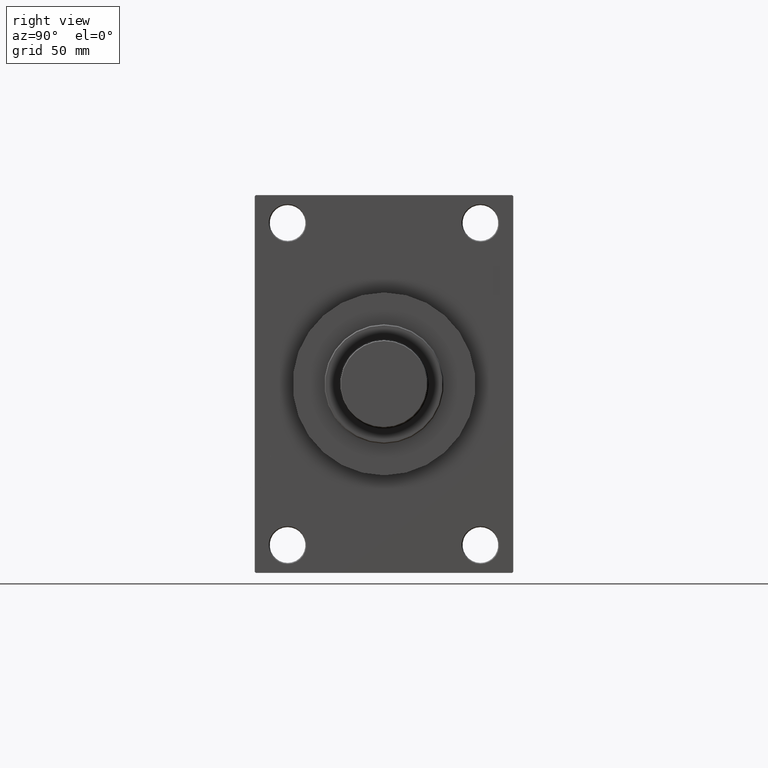
[diagram: clean part render]
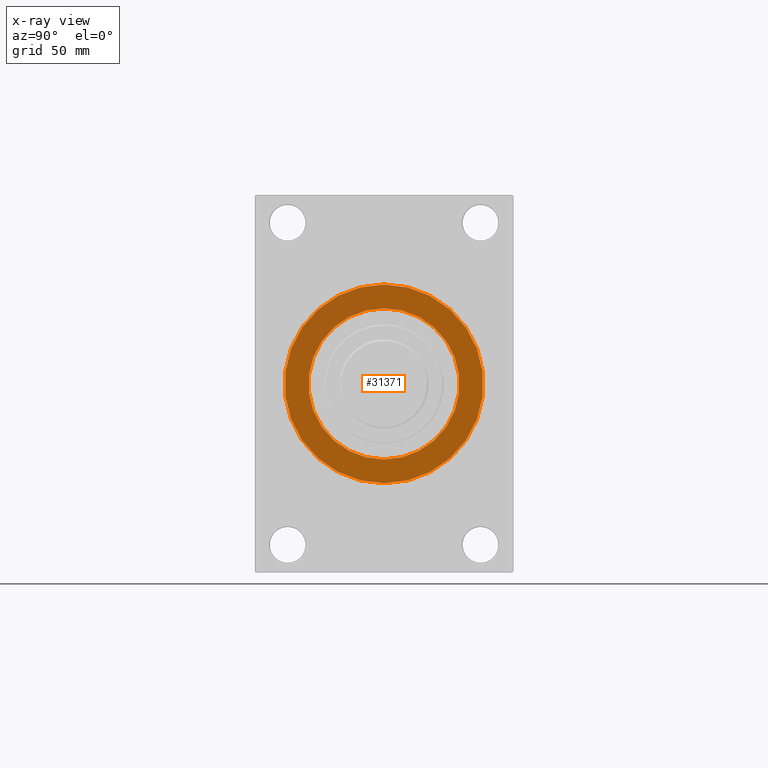
[diagram: x-ray — body ghosted, one internal face saturated and labeled with its STEP entity id]
A machine part, right view, then the same camera in x-ray: the body is ghosted and one INTERNAL B-rep face — a face not visible from any outside direction — is saturated and labeled: STEP entity #31371.
In plain terms, the highlighted planar face has unit normal (-1, 0, 0).
Its self-contained STEP definition (entity closure, byte-faithful):
#94 = CARTESIAN_POINT ( 'NONE',  ( 115.9999999999999858, 3.521148781771555838E-15, -50.00000000000000000 ) ) ;
#414 = EDGE_LOOP ( 'NONE', ( #46497, #8575 ) ) ;
#750 = AXIS2_PLACEMENT_3D ( 'NONE', #7454, #44893, #15947 ) ;
#2576 = CIRCLE ( 'NONE', #5693, 50.00000000000000000 ) ;
#5693 = AXIS2_PLACEMENT_3D ( 'NONE', #18767, #11231, #33599 ) ;
#6018 = DIRECTION ( 'NONE',  ( 0.000000000000000000, 0.000000000000000000, 1.000000000000000000 ) ) ;
#6866 = VERTEX_POINT ( 'NONE', #24240 ) ;
#7324 = ORIENTED_EDGE ( 'NONE', *, *, #43198, .F. ) ;
#7454 = CARTESIAN_POINT ( 'NONE',  ( 115.9999999999999858, -2.602085213965210642E-15, 0.000000000000000000 ) ) ;
#8394 = ORIENTED_EDGE ( 'NONE', *, *, #37595, .F. ) ;
#8575 = ORIENTED_EDGE ( 'NONE', *, *, #35384, .F. ) ;
#8644 = CARTESIAN_POINT ( 'NONE',  ( 115.9999999999999858, 0.000000000000000000, 0.000000000000000000 ) ) ;
#10936 = CIRCLE ( 'NONE', #11704, 38.00000000000000000 ) ;
#11231 = DIRECTION ( 'NONE',  ( 1.000000000000000000, 0.000000000000000000, 0.000000000000000000 ) ) ;
#11704 = AXIS2_PLACEMENT_3D ( 'NONE', #24504, #39334, #6018 ) ;
#12676 = AXIS2_PLACEMENT_3D ( 'NONE', #28139, #20842, #35688 ) ;
#12753 = FACE_OUTER_BOUND ( 'NONE', #414, .T. ) ;
#12992 = PLANE ( 'NONE',  #20949 ) ;
#15947 = DIRECTION ( 'NONE',  ( 0.000000000000000000, 0.000000000000000000, -1.000000000000000000 ) ) ;
#18767 = CARTESIAN_POINT ( 'NONE',  ( 115.9999999999999858, -2.602085213965210642E-15, 0.000000000000000000 ) ) ;
#20446 = CIRCLE ( 'NONE', #12676, 38.00000000000000000 ) ;
#20842 = DIRECTION ( 'NONE',  ( -1.000000000000000000, 0.000000000000000000, -0.000000000000000000 ) ) ;
#20949 = AXIS2_PLACEMENT_3D ( 'NONE', #8644, #38307, #45362 ) ;
#22477 = CIRCLE ( 'NONE', #750, 50.00000000000000000 ) ;
#24183 = FACE_BOUND ( 'NONE', #31533, .T. ) ;
#24240 = CARTESIAN_POINT ( 'NONE',  ( 115.9999999999999858, 0.000000000000000000, -38.00000000000000000 ) ) ;
#24504 = CARTESIAN_POINT ( 'NONE',  ( 115.9999999999999858, 0.000000000000000000, 0.000000000000000000 ) ) ;
#28139 = CARTESIAN_POINT ( 'NONE',  ( 115.9999999999999858, 0.000000000000000000, 0.000000000000000000 ) ) ;
#30685 = CARTESIAN_POINT ( 'NONE',  ( 115.9999999999999858, 4.653657836759941941E-15, 38.00000000000000000 ) ) ;
#31371 = ADVANCED_FACE ( 'NONE', ( #24183, #12753 ), #12992, .T. ) ;
#31533 = EDGE_LOOP ( 'NONE', ( #7324, #8394 ) ) ;
#32701 = CARTESIAN_POINT ( 'NONE',  ( 115.9999999999999858, -2.602085213965210642E-15, 50.00000000000000000 ) ) ;
#33599 = DIRECTION ( 'NONE',  ( 0.000000000000000000, 0.000000000000000000, -1.000000000000000000 ) ) ;
#35384 = EDGE_CURVE ( 'NONE', #43702, #43539, #22477, .T. ) ;
#35688 = DIRECTION ( 'NONE',  ( 0.000000000000000000, 0.000000000000000000, 1.000000000000000000 ) ) ;
#37595 = EDGE_CURVE ( 'NONE', #46736, #6866, #10936, .T. ) ;
#38307 = DIRECTION ( 'NONE',  ( -1.000000000000000000, 0.000000000000000000, -0.000000000000000000 ) ) ;
#39334 = DIRECTION ( 'NONE',  ( -1.000000000000000000, 0.000000000000000000, -0.000000000000000000 ) ) ;
#43198 = EDGE_CURVE ( 'NONE', #6866, #46736, #20446, .T. ) ;
#43539 = VERTEX_POINT ( 'NONE', #32701 ) ;
#43702 = VERTEX_POINT ( 'NONE', #94 ) ;
#44893 = DIRECTION ( 'NONE',  ( 1.000000000000000000, 0.000000000000000000, 0.000000000000000000 ) ) ;
#45362 = DIRECTION ( 'NONE',  ( -0.000000000000000000, 0.000000000000000000, 1.000000000000000000 ) ) ;
#46497 = ORIENTED_EDGE ( 'NONE', *, *, #46597, .F. ) ;
#46597 = EDGE_CURVE ( 'NONE', #43539, #43702, #2576, .T. ) ;
#46736 = VERTEX_POINT ( 'NONE', #30685 ) ;